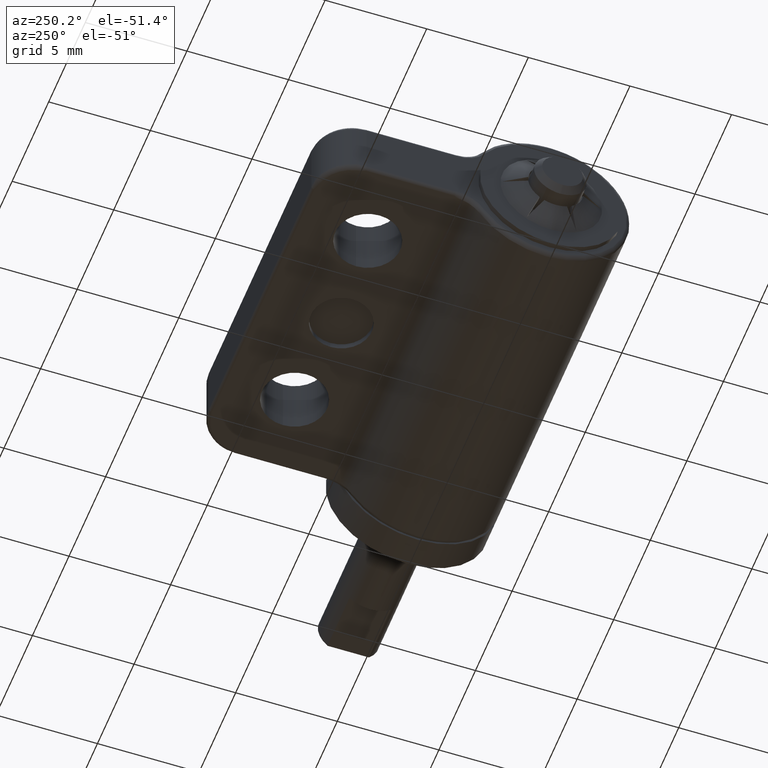
[diagram: clean part render]
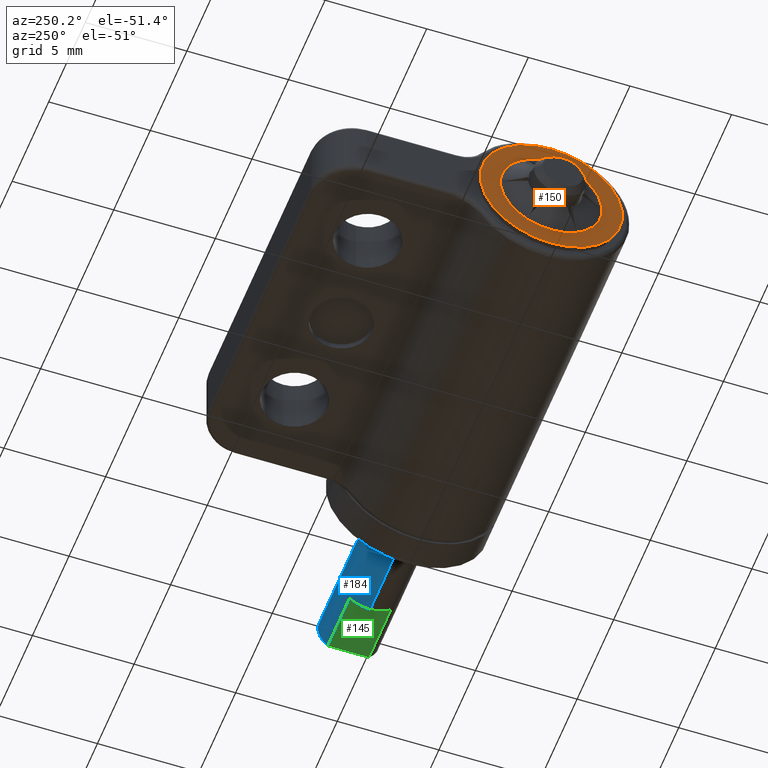
[diagram: same view with three faces highlighted in distinct colors, each labeled with its STEP entity id]
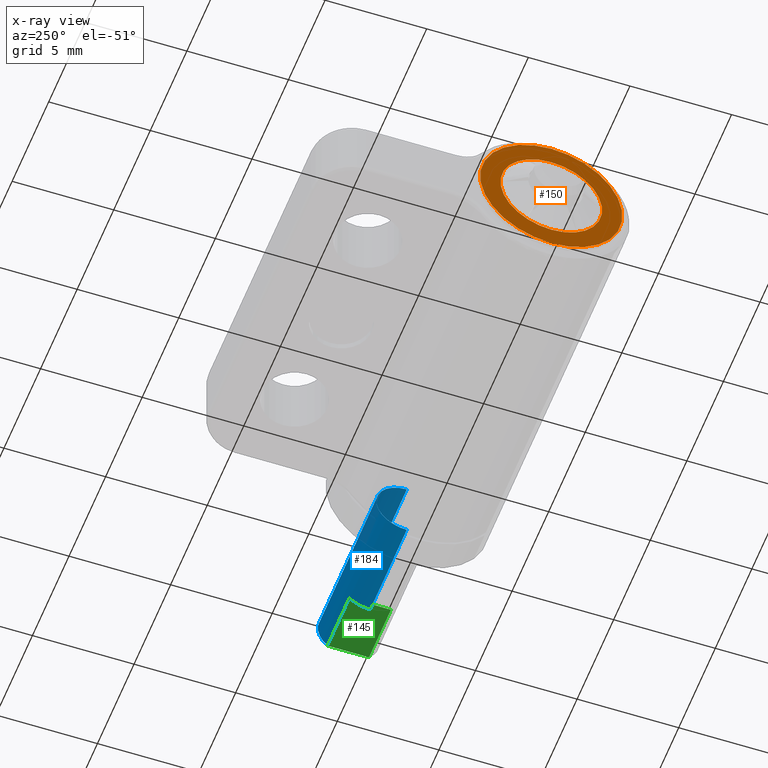
[diagram: x-ray of the same camera — body ghosted, the three highlighted faces saturated]
A machine part, auxiliary view with three faces highlighted in distinct colors.
The next image is the same camera in x-ray (body ghosted, the three faces saturated) — at least one of them is partly hidden behind the body in this view.
Their STEP definitions:

[orange] entity #150 — the highlighted planar face has unit normal (-1, -0, -0).
#150=ADVANCED_FACE('',(#1299,#1300),#1298,.T.);
#1298=PLANE('',#2494);
#1299=FACE_OUTER_BOUND('',#2495,.T.);
#1300=FACE_BOUND('',#2496,.T.);
#2491=CARTESIAN_POINT('',(-9.25000000000E+00,7.27461339179E+00,-8.05000000000E+00));
#2492=DIRECTION('',(-1.00000000000E+00,-0.00000000000E+00,-3.52738685285E-21));
#2493=DIRECTION('',(0.00000000000E+00,-1.00000000000E+00,0.00000000000E+00));
#2494=AXIS2_PLACEMENT_3D('',#2491,#2492,#2493);
#2495=EDGE_LOOP('',(#3313,#3314));
#2496=EDGE_LOOP('',(#3315,#3316));
#3313=ORIENTED_EDGE('',*,*,#3897,.F.);
#3314=ORIENTED_EDGE('',*,*,#3898,.F.);
#3315=ORIENTED_EDGE('',*,*,#3899,.T.);
#3316=ORIENTED_EDGE('',*,*,#3900,.T.);
#3897=EDGE_CURVE('',#6257,#6258,#6259,.T.);
#3898=EDGE_CURVE('',#6258,#6257,#6265,.T.);
#3899=EDGE_CURVE('',#6271,#6272,#6273,.T.);
#3900=EDGE_CURVE('',#6272,#6271,#6279,.T.);
#6257=VERTEX_POINT('',#8123);
#6258=VERTEX_POINT('',#8124);
#6259=CIRCLE('',#8128,3.50000000000E+00);
#6265=CIRCLE('',#8132,3.50000000000E+00);
#6271=VERTEX_POINT('',#8133);
#6272=VERTEX_POINT('',#8134);
#6273=CIRCLE('',#8138,2.50000000000E+00);
#6279=CIRCLE('',#8142,2.50000000000E+00);
#8123=CARTESIAN_POINT('',(-9.25000000000E+00,4.44089209850E-16,-3.50000000000E+00));
#8124=CARTESIAN_POINT('',(-9.25000000000E+00,-1.41558637420E-20,3.50000000000E+00));
#8125=CARTESIAN_POINT('',(-9.25000000000E+00,0.00000000000E+00,-8.81846713212E-22));
#8126=DIRECTION('',(1.00000000000E+00,4.31980301869E-37,5.29023293979E-53));
#8127=DIRECTION('',(-0.00000000000E+00,-1.22464679915E-16,1.00000000000E+00));
#8128=AXIS2_PLACEMENT_3D('',#8125,#8126,#8127);
#8129=CARTESIAN_POINT('',(-9.25000000000E+00,0.00000000000E+00,-8.81846713212E-22));
#8130=DIRECTION('',(1.00000000000E+00,4.31980301869E-37,5.29023293979E-53));
#8131=DIRECTION('',(-0.00000000000E+00,-1.22464679915E-16,1.00000000000E+00));
#8132=AXIS2_PLACEMENT_3D('',#8129,#8130,#8131);
#8133=CARTESIAN_POINT('',(-9.25000000000E+00,-1.01113312438E-20,2.50000000000E+00));
#8134=CARTESIAN_POINT('',(-9.25000000000E+00,2.96059473233E-16,-2.50000000000E+00));
#8135=CARTESIAN_POINT('',(-9.25000000000E+00,0.00000000000E+00,-8.81846713212E-22));
#8136=DIRECTION('',(1.00000000000E+00,4.31980301869E-37,5.29023293979E-53));
#8137=DIRECTION('',(-0.00000000000E+00,-1.22464679915E-16,1.00000000000E+00));
#8138=AXIS2_PLACEMENT_3D('',#8135,#8136,#8137);
#8139=CARTESIAN_POINT('',(-9.25000000000E+00,0.00000000000E+00,-8.81846713212E-22));
#8140=DIRECTION('',(1.00000000000E+00,4.31980301869E-37,5.29023293979E-53));
#8141=DIRECTION('',(-0.00000000000E+00,-1.22464679915E-16,1.00000000000E+00));
#8142=AXIS2_PLACEMENT_3D('',#8139,#8140,#8141);

[blue] entity #184 — the highlighted cylindrical surface (edge-blend (fillet) strip) has radius 1.5 mm, axis along (1, -0, -0).
#184=ADVANCED_FACE('',(#1647),#1646,.T.);
#1646=CYLINDRICAL_SURFACE('',#2732,1.50000000000E+00);
#1647=FACE_OUTER_BOUND('',#2733,.T.);
#2729=CARTESIAN_POINT('',(1.45000000000E+01,0.00000000000E+00,0.00000000000E+00));
#2730=DIRECTION('',(1.00000000000E+00,-0.00000000000E+00,-0.00000000000E+00));
#2731=DIRECTION('',(-0.00000000000E+00,-0.00000000000E+00,1.00000000000E+00));
#2732=AXIS2_PLACEMENT_3D('',#2729,#2730,#2731);
#2733=EDGE_LOOP('',(#3538,#3539,#3540,#3541,#3542,#3543,#3544,#3545));
#3538=ORIENTED_EDGE('',*,*,#3864,.F.);
#3539=ORIENTED_EDGE('',*,*,#3955,.T.);
#3540=ORIENTED_EDGE('',*,*,#3870,.T.);
#3541=ORIENTED_EDGE('',*,*,#3872,.T.);
#3542=ORIENTED_EDGE('',*,*,#3866,.T.);
#3543=ORIENTED_EDGE('',*,*,#3878,.T.);
#3544=ORIENTED_EDGE('',*,*,#3876,.T.);
#3545=ORIENTED_EDGE('',*,*,#3956,.F.);
#3864=EDGE_CURVE('',#6032,#6031,#6039,.T.);
#3866=EDGE_CURVE('',#6053,#6046,#6054,.T.);
#3870=EDGE_CURVE('',#6081,#6073,#6082,.T.);
#3872=EDGE_CURVE('',#6073,#6053,#6094,.T.);
#3876=EDGE_CURVE('',#6107,#6114,#6121,.T.);
#3878=EDGE_CURVE('',#6046,#6107,#6133,.T.);
#3955=EDGE_CURVE('',#6032,#6081,#6624,.T.);
#3956=EDGE_CURVE('',#6031,#6114,#6630,.T.);
#6031=VERTEX_POINT('',#7987);
#6032=VERTEX_POINT('',#7988);
#6039=CIRCLE('',#7996,1.50000000000E+00);
#6046=VERTEX_POINT('',#7998);
#6053=VERTEX_POINT('',#8002);
#6054=CIRCLE('',#8006,1.50000000000E+00);
#6073=VERTEX_POINT('',#8015);
#6081=VERTEX_POINT('',#8020);
#6082=CIRCLE('',#8024,1.50000000000E+00);
#6094=LINE('',#8029,#8030);
#6107=VERTEX_POINT('',#8036);
#6114=VERTEX_POINT('',#8040);
#6121=CIRCLE('',#8048,1.50000000000E+00);
#6133=LINE('',#8052,#8053);
#6624=(BOUNDED_CURVE() B_SPLINE_CURVE(1,(#8323,#8324),.UNSPECIFIED.,.F.,.F.) B_SPLINE_CURVE_WITH_KNOTS((2,2),(8.33333366442E-02,6.04166666544E-01),.UNSPECIFIED.) CURVE() GEOMETRIC_REPRESENTATION_ITEM() RATIONAL_B_SPLINE_CURVE((1.00000000000E+00,1.00000000000E+00)) REPRESENTATION_ITEM('') );
#6630=(BOUNDED_CURVE() B_SPLINE_CURVE(1,(#8325,#8326),.UNSPECIFIED.,.F.,.F.) B_SPLINE_CURVE_WITH_KNOTS((2,2),(8.33333333333E-02,6.04166666667E-01),.UNSPECIFIED.) CURVE() GEOMETRIC_REPRESENTATION_ITEM() RATIONAL_B_SPLINE_CURVE((7.50000000000E-01,7.50000000000E-01)) REPRESENTATION_ITEM('') );
#7987=CARTESIAN_POINT('',(1.05000000000E+01,-6.06679874640E-21,-1.50000000000E+00));
#7988=CARTESIAN_POINT('',(1.05000000000E+01,2.96059473233E-16,1.50000000000E+00));
#7993=CARTESIAN_POINT('',(1.05000000000E+01,0.00000000000E+00,0.00000000000E+00));
#7994=DIRECTION('',(-1.00000000000E+00,0.00000000000E+00,0.00000000000E+00));
#7995=DIRECTION('',(-0.00000000000E+00,-1.22464679915E-16,-1.00000000000E+00));
#7996=AXIS2_PLACEMENT_3D('',#7993,#7994,#7995);
#7998=CARTESIAN_POINT('',(1.85000000000E+01,1.01980390272E+00,-1.10000000000E+00));
#8002=CARTESIAN_POINT('',(1.85000000000E+01,1.01980390272E+00,1.10000000000E+00));
#8003=CARTESIAN_POINT('',(1.85000000000E+01,0.00000000000E+00,0.00000000000E+00));
#8004=DIRECTION('',(-1.00000000000E+00,0.00000000000E+00,0.00000000000E+00));
#8005=DIRECTION('',(-0.00000000000E+00,-6.79869268479E-01,-7.33333333333E-01));
#8006=AXIS2_PLACEMENT_3D('',#8003,#8004,#8005);
#8015=CARTESIAN_POINT('',(1.55000000000E+01,1.01980390272E+00,1.10000000000E+00));
#8020=CARTESIAN_POINT('',(1.55000000000E+01,-1.28102656688E-16,1.50000000000E+00));
#8021=CARTESIAN_POINT('',(1.55000000000E+01,0.00000000000E+00,0.00000000000E+00));
#8022=DIRECTION('',(-1.00000000000E+00,0.00000000000E+00,0.00000000000E+00));
#8023=DIRECTION('',(-0.00000000000E+00,-1.22464679915E-16,-1.00000000000E+00));
#8024=AXIS2_PLACEMENT_3D('',#8021,#8022,#8023);
#8029=CARTESIAN_POINT('',(1.55000000000E+01,1.01980390272E+00,1.10000000000E+00));
#8030=VECTOR('',#8031,3.00000000000E+00);
#8031=DIRECTION('',(1.00000000000E+00,0.00000000000E+00,0.00000000000E+00));
#8036=CARTESIAN_POINT('',(1.55000000000E+01,1.01980390272E+00,-1.10000000000E+00));
#8040=CARTESIAN_POINT('',(1.55000000000E+01,1.69757959612E-08,-1.50000000000E+00));
#8045=CARTESIAN_POINT('',(1.55000000000E+01,0.00000000000E+00,0.00000000000E+00));
#8046=DIRECTION('',(-1.00000000000E+00,1.08468920031E-17,1.00560934520E-17));
#8047=DIRECTION('',(-1.54074395551E-33,-6.79869268479E-01,7.33333333333E-01));
#8048=AXIS2_PLACEMENT_3D('',#8045,#8046,#8047);
#8052=CARTESIAN_POINT('',(1.85000000000E+01,1.01980390272E+00,-1.10000000000E+00));
#8053=VECTOR('',#8054,3.00000000000E+00);
#8054=DIRECTION('',(-1.00000000000E+00,0.00000000000E+00,0.00000000000E+00));
#8323=CARTESIAN_POINT('',(1.05000000318E+01,0.00000000000E+00,1.50000000000E+00));
#8324=CARTESIAN_POINT('',(1.54999999988E+01,0.00000000000E+00,1.50000000000E+00));
#8325=CARTESIAN_POINT('',(1.05000000000E+01,7.40148683083E-17,-1.50000000000E+00));
#8326=CARTESIAN_POINT('',(1.55000000000E+01,7.40148683083E-17,-1.50000000000E+00));

[green] entity #145 — the highlighted planar face has unit normal (0, 0, 1).
#145=ADVANCED_FACE('',(#1248),#1247,.F.);
#1247=PLANE('',#2462);
#1248=FACE_OUTER_BOUND('',#2463,.T.);
#2459=CARTESIAN_POINT('',(1.88000000000E+01,-1.22376468326E+00,-1.10000000000E+00));
#2460=DIRECTION('',(0.00000000000E+00,6.80414527284E-17,1.00000000000E+00));
#2461=DIRECTION('',(0.00000000000E+00,1.00000000000E+00,-6.80414527284E-17));
#2462=AXIS2_PLACEMENT_3D('',#2459,#2460,#2461);
#2463=EDGE_LOOP('',(#3267,#3268,#3269,#3270));
#3267=ORIENTED_EDGE('',*,*,#3865,.F.);
#3268=ORIENTED_EDGE('',*,*,#3877,.F.);
#3269=ORIENTED_EDGE('',*,*,#3874,.T.);
#3270=ORIENTED_EDGE('',*,*,#3878,.F.);
#3865=EDGE_CURVE('',#6045,#6046,#6047,.T.);
#3874=EDGE_CURVE('',#6106,#6107,#6108,.T.);
#3877=EDGE_CURVE('',#6106,#6045,#6127,.T.);
#3878=EDGE_CURVE('',#6046,#6107,#6133,.T.);
#6045=VERTEX_POINT('',#7997);
#6046=VERTEX_POINT('',#7998);
#6047=LINE('',#7999,#8000);
#6106=VERTEX_POINT('',#8035);
#6107=VERTEX_POINT('',#8036);
#6108=LINE('',#8037,#8038);
#6127=LINE('',#8049,#8050);
#6133=LINE('',#8052,#8053);
#7997=CARTESIAN_POINT('',(1.85000000000E+01,-1.01980390272E+00,-1.10000000000E+00));
#7998=CARTESIAN_POINT('',(1.85000000000E+01,1.01980390272E+00,-1.10000000000E+00));
#7999=CARTESIAN_POINT('',(1.85000000000E+01,-1.01980390272E+00,-1.10000000000E+00));
#8000=VECTOR('',#8001,2.03960780544E+00);
#8001=DIRECTION('',(0.00000000000E+00,1.00000000000E+00,0.00000000000E+00));
#8035=CARTESIAN_POINT('',(1.55000000000E+01,-1.01980390272E+00,-1.10000000000E+00));
#8036=CARTESIAN_POINT('',(1.55000000000E+01,1.01980390272E+00,-1.10000000000E+00));
#8037=CARTESIAN_POINT('',(1.55000000000E+01,-1.01980390272E+00,-1.10000000000E+00));
#8038=VECTOR('',#8039,2.03960780544E+00);
#8039=DIRECTION('',(0.00000000000E+00,1.00000000000E+00,0.00000000000E+00));
#8049=CARTESIAN_POINT('',(1.55000000000E+01,-1.01980390272E+00,-1.10000000000E+00));
#8050=VECTOR('',#8051,3.00000000000E+00);
#8051=DIRECTION('',(1.00000000000E+00,0.00000000000E+00,0.00000000000E+00));
#8052=CARTESIAN_POINT('',(1.85000000000E+01,1.01980390272E+00,-1.10000000000E+00));
#8053=VECTOR('',#8054,3.00000000000E+00);
#8054=DIRECTION('',(-1.00000000000E+00,0.00000000000E+00,0.00000000000E+00));